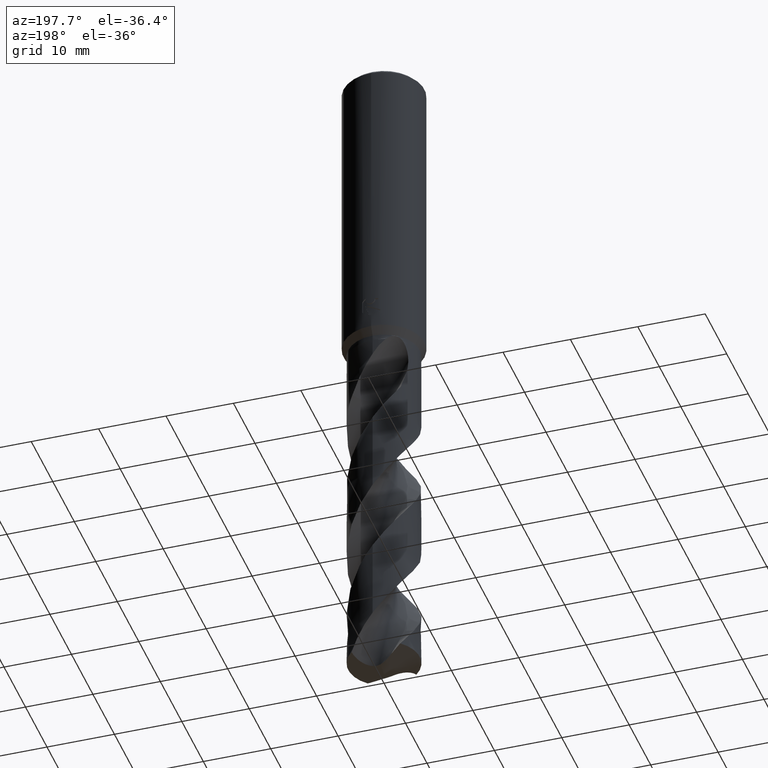
[diagram: clean part render]
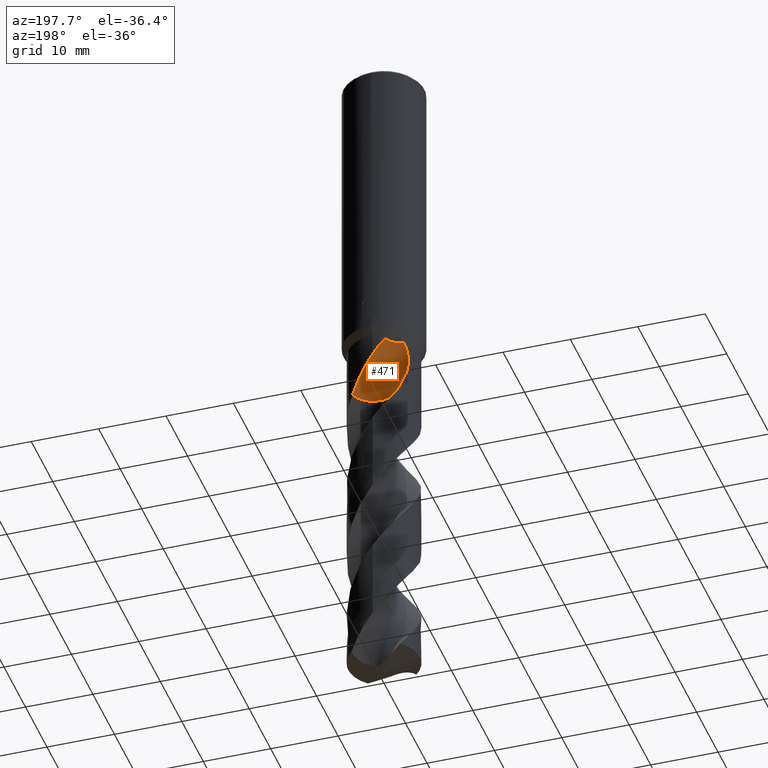
[diagram: same view with one face highlighted and labeled with its STEP entity id]
A machine part, auxiliary view. The second image highlights one B-rep face of the part: STEP entity #471.
In plain terms, the highlighted face is a SurfaceOfRevolution surface.
Its self-contained STEP definition (entity closure, byte-faithful):
#299=EDGE_CURVE('',#421,#715,#793,.T.);
#353=VERTEX_POINT('',#852);
#421=VERTEX_POINT('',#928);
#461=EDGE_CURVE('',#715,#653,#972,.T.);
#471=ADVANCED_FACE('',(#984),#985,.F.);
#503=EDGE_CURVE('',#529,#725,#1017,.T.);
#529=VERTEX_POINT('',#1045);
#543=EDGE_CURVE('',#353,#421,#1060,.T.);
#595=VERTEX_POINT('',#1118);
#653=VERTEX_POINT('',#1182);
#657=EDGE_CURVE('',#725,#595,#1186,.T.);
#679=EDGE_CURVE('',#353,#529,#1209,.T.);
#715=VERTEX_POINT('',#1248);
#725=VERTEX_POINT('',#1259);
#733=EDGE_CURVE('',#595,#653,#1267,.T.);
#793=CIRCLE('',#1353,3.53333333);
#852=CARTESIAN_POINT('',(3.37720920714664,4.08455115477177,-55.0186));
#928=CARTESIAN_POINT('',(-0.417518740502081,1.61473835074636,-55.0186));
#972=CIRCLE('',#2641,23.0298774550674);
#984=FACE_OUTER_BOUND('',#2663,.T.);
#985=SURFACE_OF_REVOLUTION('',#2664,#2665);
#1017=B_SPLINE_CURVE_WITH_KNOTS('',3,(#2868,#2869,#2870,#2871,#2872,#2873,#2874,#2875,#2876,#2877,#2878,#2879,#2880,#2881),.UNSPECIFIED.,.F.,.F.,(4,2,2,2,2,2,4),(0.0,2.59670918660148,4.01456547524766,5.29877543297167,6.79070025874205,8.58283170323212,9.5037677881479),.UNSPECIFIED.);
#1045=CARTESIAN_POINT('',(-1.5712898963044E-012,5.29990449367141,-49.384834452103));
#1060=CIRCLE('',#3322,3.53333333);
#1118=CARTESIAN_POINT('',(-4.01599192743447,3.45843155907142,-47.0));
#1182=CARTESIAN_POINT('',(-4.31221697083058,3.08120544577744,-52.1165631790947));
#1186=B_SPLINE_CURVE_WITH_KNOTS('',3,(#4780,#4781,#4782,#4783,#4784,#4785,#4786,#4787,#4788,#4789,#4790,#4791),.UNSPECIFIED.,.F.,.F.,(4,2,2,2,2,4),(0.0,1.15036274384304,2.20231320354942,3.26386551237335,3.91244793540763,4.58845118835223),.UNSPECIFIED.);
#1209=B_SPLINE_CURVE_WITH_KNOTS('',3,(#4879,#4880,#4881,#4882,#4883,#4884,#4885,#4886,#4887,#4888,#4889,#4890,#4891,#4892),.UNSPECIFIED.,.F.,.F.,(4,2,2,2,2,2,4),(0.0,2.59670918660148,4.01456547524766,5.29877543297167,6.79070025874205,8.58283170323212,9.5037677881479),.UNSPECIFIED.);
#1248=CARTESIAN_POINT('',(-2.49844395776474,2.62488937223527,-55.0186));
#1259=CARTESIAN_POINT('',(-1.80524470601271,4.98297416824662,-47.0));
#1267=B_SPLINE_CURVE_WITH_KNOTS('',3,(#5201,#5202,#5203,#5204,#5205,#5206,#5207,#5208,#5209,#5210),.UNSPECIFIED.,.F.,.F.,(4,2,2,2,4),(0.0,0.994290373055302,2.38439343700541,3.11708478793856,3.88192680481542),.UNSPECIFIED.);
#1353=AXIS2_PLACEMENT_3D('',#5283,#5284,#5285);
#2641=AXIS2_PLACEMENT_3D('',#5490,#5491,#5492);
#2663=EDGE_LOOP('',(#5513,#5514,#5515,#5516,#5517,#5518,#5519));
#2664=(B_SPLINE_CURVE(3,(#5521,#5522,#5523,#5524,#5525,#5526,#5527,#5528,#5529),.UNSPECIFIED.,.F.,.F.)B_SPLINE_CURVE_WITH_KNOTS((4,1,3,1,4),(-2.8563728188419,-2.55358766717201,-2.25080251550211,-1.94801736383222,-1.64523221216233),.UNSPECIFIED.)RATIONAL_B_SPLINE_CURVE((1.09167884807176,1.03055961602392,0.96944038397608,1.03055961602392,1.09167884807176,1.03055961602392,0.96944038397608,1.03055961602392,1.09167884807176))BOUNDED_CURVE()REPRESENTATION_ITEM('')GEOMETRIC_REPRESENTATION_ITEM()CURVE());
#2665=AXIS1_PLACEMENT('',#5536,#5537);
#2868=CARTESIAN_POINT('',(3.37720920714663,4.08455115477177,-55.0186));
#2869=CARTESIAN_POINT('',(3.02760753185706,4.37360877458154,-54.2814193460245));
#2870=CARTESIAN_POINT('',(2.62564225821635,4.63056299069797,-53.5941289943725));
#2871=CARTESIAN_POINT('',(1.92473283068592,4.94551353792239,-52.445969501343));
#2872=CARTESIAN_POINT('',(1.67251270815272,5.03611282721223,-52.0420099385316));
#2873=CARTESIAN_POINT('',(1.18424744314125,5.17151574801369,-51.2600538023564));
#2874=CARTESIAN_POINT('',(0.950382197208527,5.21935314113536,-50.8857014377632));
#2875=CARTESIAN_POINT('',(0.444164768797214,5.28839344323376,-50.0788792275342));
#2876=CARTESIAN_POINT('',(0.167583713678805,5.30460202742268,-49.6400936877887));
#2877=CARTESIAN_POINT('',(-0.446631007569024,5.2916812833885,-48.7013907332086));
#2878=CARTESIAN_POINT('',(-0.810797445215999,5.2517203524038,-48.1672612769586));
#2879=CARTESIAN_POINT('',(-1.38030927006227,5.12084375117703,-47.4529933015425));
#2880=CARTESIAN_POINT('',(-1.58866661899356,5.06143706053471,-47.2123286697739));
#2881=CARTESIAN_POINT('',(-1.80524470601272,4.98297416824662,-47.0));
#3322=AXIS2_PLACEMENT_3D('',#5589,#5590,#5591);
#4780=CARTESIAN_POINT('',(-1.65573646105982,5.3499,-47.0));
#4781=CARTESIAN_POINT('',(-1.77745955044994,4.98627842503718,-47.0));
#4782=CARTESIAN_POINT('',(-1.96309930859268,4.65014970178557,-46.9999999999854));
#4783=CARTESIAN_POINT('',(-2.44503954234672,4.09850742970244,-46.9999999999854));
#4784=CARTESIAN_POINT('',(-2.72221942632462,3.88491916989616,-47.0000000000008));
#4785=CARTESIAN_POINT('',(-3.3525234886347,3.57430879561628,-47.0000000000008));
#4786=CARTESIAN_POINT('',(-3.69504051161144,3.483849928663,-47.0000000000001));
#4787=CARTESIAN_POINT('',(-4.26247835254832,3.43861634221532,-47.0000000000001));
#4788=CARTESIAN_POINT('',(-4.4788338110631,3.44493243516388,-47.0));
#4789=CARTESIAN_POINT('',(-4.91633327960897,3.50100059048197,-47.0));
#4790=CARTESIAN_POINT('',(-5.13622669064037,3.55242801716491,-47.0));
#4791=CARTESIAN_POINT('',(-5.3499,3.62355571757393,-47.0));
#4879=CARTESIAN_POINT('',(3.37720920714663,4.08455115477177,-55.0186));
#4880=CARTESIAN_POINT('',(3.02760753185706,4.37360877458154,-54.2814193460245));
#4881=CARTESIAN_POINT('',(2.62564225821635,4.63056299069797,-53.5941289943725));
#4882=CARTESIAN_POINT('',(1.92473283068592,4.94551353792239,-52.445969501343));
#4883=CARTESIAN_POINT('',(1.67251270815272,5.03611282721223,-52.0420099385316));
#4884=CARTESIAN_POINT('',(1.18424744314125,5.17151574801369,-51.2600538023564));
#4885=CARTESIAN_POINT('',(0.950382197208527,5.21935314113536,-50.8857014377632));
#4886=CARTESIAN_POINT('',(0.444164768797214,5.28839344323376,-50.0788792275342));
#4887=CARTESIAN_POINT('',(0.167583713678805,5.30460202742268,-49.6400936877887));
#4888=CARTESIAN_POINT('',(-0.446631007569024,5.2916812833885,-48.7013907332086));
#4889=CARTESIAN_POINT('',(-0.810797445215999,5.2517203524038,-48.1672612769586));
#4890=CARTESIAN_POINT('',(-1.38030927006227,5.12084375117703,-47.4529933015425));
#4891=CARTESIAN_POINT('',(-1.58866661899356,5.06143706053471,-47.2123286697739));
#4892=CARTESIAN_POINT('',(-1.80524470601272,4.98297416824662,-47.0));
#5201=CARTESIAN_POINT('',(-4.01599192743447,3.45843155907142,-47.0));
#5202=CARTESIAN_POINT('',(-4.14694412532259,3.30636831118006,-47.2637692511208));
#5203=CARTESIAN_POINT('',(-4.25012980714781,3.16910584074351,-47.5915895221755));
#5204=CARTESIAN_POINT('',(-4.43528447021392,2.90726282812732,-48.4940234041971));
#5205=CARTESIAN_POINT('',(-4.49665484739305,2.80519634178068,-49.131904200918));
#5206=CARTESIAN_POINT('',(-4.50228764980744,2.79614445323746,-50.2210600717345));
#5207=CARTESIAN_POINT('',(-4.48790150785796,2.81972148780823,-50.5970691024127));
#5208=CARTESIAN_POINT('',(-4.42658154707283,2.91509111576733,-51.3579605544147));
#5209=CARTESIAN_POINT('',(-4.37838409327119,2.98860183605149,-51.7402249124991));
#5210=CARTESIAN_POINT('',(-4.31221697083058,3.08120544577744,-52.1165631790947));
#5283=CARTESIAN_POINT('',(1.87971636831186E-005,5.12331453283632,-55.0186));
#5284=DIRECTION('',(0.0,0.0,-1.0));
#5285=DIRECTION('',(0.707101461214546,0.707112101118524,0.0));
#5490=CARTESIAN_POINT('',(-1.79663385726903,25.61666665,-56.1414961607931));
#5491=DIRECTION('',(-0.847998304005088,6.69849062775767E-018,-0.52999894000318));
#5492=DIRECTION('',(-0.0535598124079128,-0.994880693109275,0.0856956998526605));
#5513=ORIENTED_EDGE('',*,*,#733,.F.);
#5514=ORIENTED_EDGE('',*,*,#657,.F.);
#5515=ORIENTED_EDGE('',*,*,#503,.F.);
#5516=ORIENTED_EDGE('',*,*,#679,.F.);
#5517=ORIENTED_EDGE('',*,*,#543,.T.);
#5518=ORIENTED_EDGE('',*,*,#299,.T.);
#5519=ORIENTED_EDGE('',*,*,#461,.T.);
#5521=CARTESIAN_POINT('',(-2.49844395776474,2.62488937223527,-55.0186));
#5522=CARTESIAN_POINT('',(-2.00907486196731,2.13551291279842,-55.0186));
#5523=CARTESIAN_POINT('',(-0.736575643759656,1.44015259648959,-55.0186));
#5524=CARTESIAN_POINT('',(0.705482273988597,1.59262945275235,-55.0186));
#5525=CARTESIAN_POINT('',(1.34542408728391,1.85615536527111,-55.0186));
#5526=CARTESIAN_POINT('',(1.98536590057923,2.11968127778987,-55.0186));
#5527=CARTESIAN_POINT('',(3.11662811350409,3.02688910152407,-55.0186));
#5528=CARTESIAN_POINT('',(3.53046945913001,4.41667885918051,-55.0186));
#5529=CARTESIAN_POINT('',(3.53332211173012,5.10875059920873,-55.0186));
#5536=CARTESIAN_POINT('',(-1.79663385726903,25.61666665,-56.1414961607931));
#5537=DIRECTION('',(0.847998304005088,-0.0,0.52999894000318));
#5589=CARTESIAN_POINT('',(1.87971636831186E-005,5.12331453283632,-55.0186));
#5590=DIRECTION('',(0.0,0.0,-1.0));
#5591=DIRECTION('',(0.707101461214546,0.707112101118524,0.0));